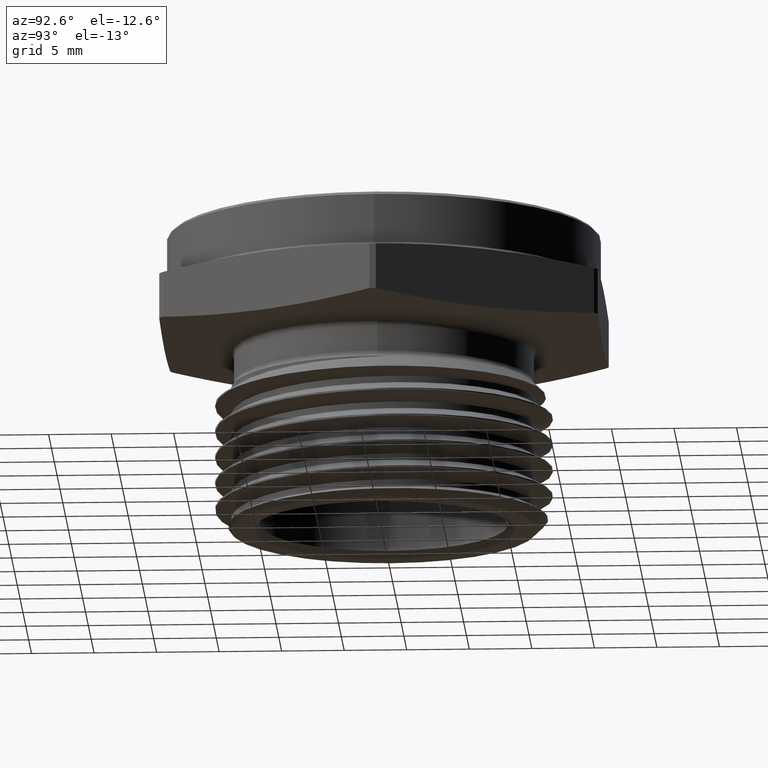
[diagram: clean part render]
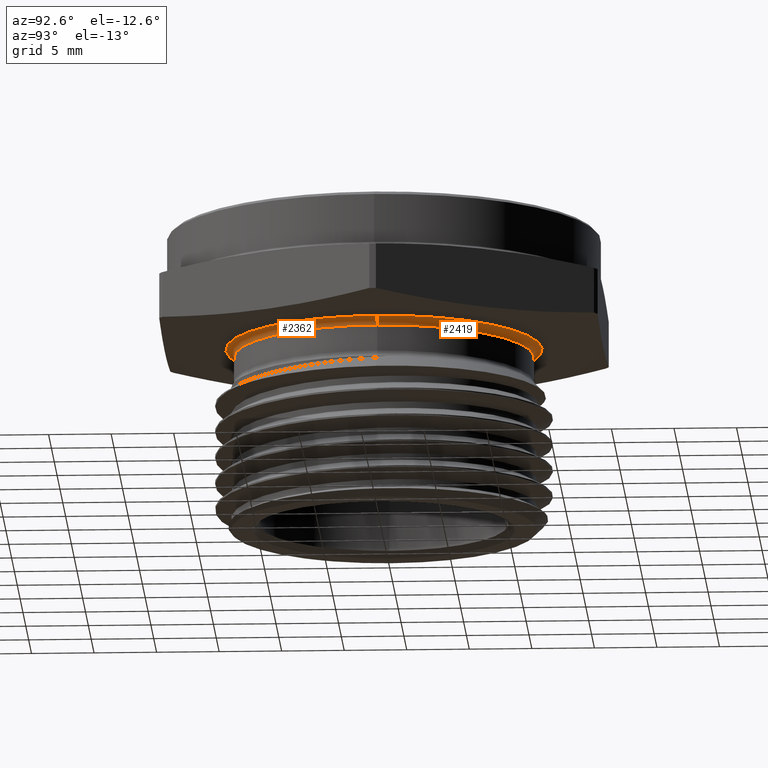
[diagram: same view with one multi-face feature highlighted, each face labeled with its STEP entity id]
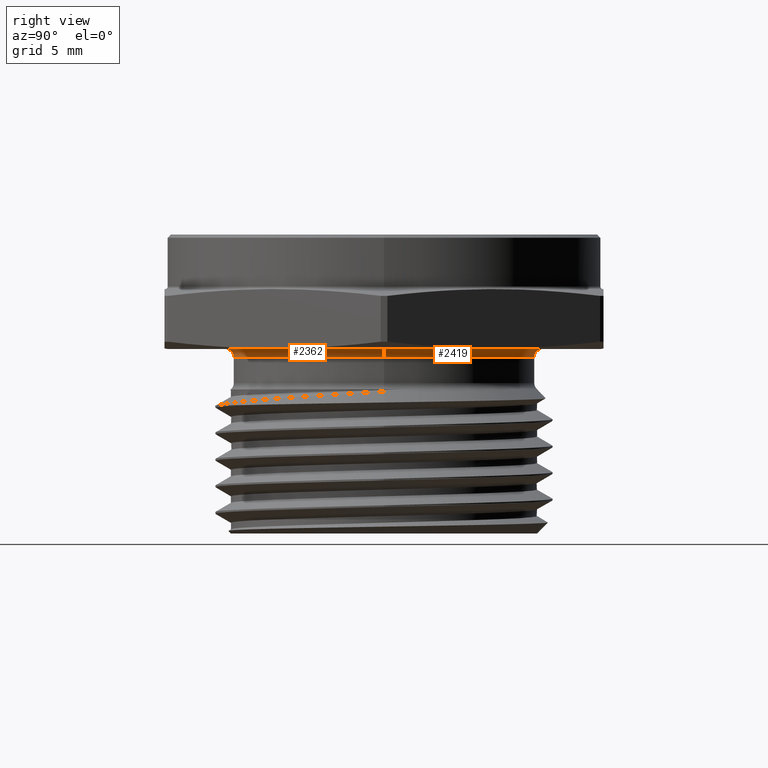
[diagram: same view with one multi-face feature highlighted, each face labeled with its STEP entity id]
A machine part, auxiliary view. The highlighted faces form ONE feature: a constant-radius fillet chain: 2 tangent blend faces with common blend radius 0.635 mm. The faces share edges in the B-rep.
A second angle (right view) of the same feature is appended — it is thin or edge-on in the first view.
Their STEP definitions:
[1] entity #2419 (Torus):
#465 = CIRCLE ( 'NONE', #2276, 0.02500000000000000500 ) ;
#467 = CIRCLE ( 'NONE', #2279, 0.02500000000000000100 ) ;
#468 = CIRCLE ( 'NONE', #2278, 0.4724999999999999200 ) ;
#515 = CIRCLE ( 'NONE', #2297, 0.4974999999999999400 ) ;
#1039 = CARTESIAN_POINT ( 'NONE',  ( 0.0000000000000000000, 0.0000000000000000000, -8.537024980200822600E-018 ) ) ;
#1040 = DIRECTION ( 'NONE',  ( -0.0000000000000000000, -0.0000000000000000000, 1.000000000000000000 ) ) ;
#1041 = DIRECTION ( 'NONE',  ( 1.000000000000000000, 0.0000000000000000000, 0.0000000000000000000 ) ) ;
#1225 = VERTEX_POINT ( 'NONE', #1357 ) ;
#1231 = VERTEX_POINT ( 'NONE', #1358 ) ;
#1232 = VERTEX_POINT ( 'NONE', #1363 ) ;
#1242 = VERTEX_POINT ( 'NONE', #1371 ) ;
#1357 = CARTESIAN_POINT ( 'NONE',  ( -0.4724999999999999200, 5.786456125971242800E-017, -0.02500000000000001500 ) ) ;
#1358 = CARTESIAN_POINT ( 'NONE',  ( 0.4724999999999999200, 0.0000000000000000000, -0.02500000000000001500 ) ) ;
#1363 = CARTESIAN_POINT ( 'NONE',  ( -0.4974999999999999400, 6.092617825758081700E-017, -6.402768735150616900E-018 ) ) ;
#1371 = CARTESIAN_POINT ( 'NONE',  ( 0.4974999999999999400, 0.0000000000000000000, -6.402768735150616900E-018 ) ) ;
#1739 = EDGE_LOOP ( 'NONE', ( #1855, #1856, #1857, #1858 ) ) ;
#1855 = ORIENTED_EDGE ( 'NONE', *, *, #2178, .F. ) ;
#1856 = ORIENTED_EDGE ( 'NONE', *, *, #2226, .F. ) ;
#1857 = ORIENTED_EDGE ( 'NONE', *, *, #2181, .T. ) ;
#1858 = ORIENTED_EDGE ( 'NONE', *, *, #2180, .T. ) ;
#2133 = CARTESIAN_POINT ( 'NONE',  ( -0.4974999999999999400, 6.092617825758081700E-017, -0.02500000000000001200 ) ) ;
#2134 = DIRECTION ( 'NONE',  ( 1.224646799147353200E-016, 1.000000000000000000, 0.0000000000000000000 ) ) ;
#2135 = DIRECTION ( 'NONE',  ( -1.000000000000000000, 1.224646799147351700E-016, 0.0000000000000000000 ) ) ;
#2140 = CARTESIAN_POINT ( 'NONE',  ( 0.0000000000000000000, 0.0000000000000000000, -0.02500000000000001500 ) ) ;
#2141 = DIRECTION ( 'NONE',  ( -0.0000000000000000000, -0.0000000000000000000, 1.000000000000000000 ) ) ;
#2142 = DIRECTION ( 'NONE',  ( 1.000000000000000000, 0.0000000000000000000, 0.0000000000000000000 ) ) ;
#2143 = CARTESIAN_POINT ( 'NONE',  ( 0.4974999999999999400, 0.0000000000000000000, -0.02500000000000001200 ) ) ;
#2144 = DIRECTION ( 'NONE',  ( 0.0000000000000000000, -1.000000000000000000, 0.0000000000000000000 ) ) ;
#2145 = DIRECTION ( 'NONE',  ( 0.0000000000000000000, 0.0000000000000000000, -1.000000000000000000 ) ) ;
#2178 = EDGE_CURVE ( 'NONE', #1232, #1225, #465, .T. ) ;
#2180 = EDGE_CURVE ( 'NONE', #1231, #1225, #468, .T. ) ;
#2181 = EDGE_CURVE ( 'NONE', #1242, #1231, #467, .T. ) ;
#2226 = EDGE_CURVE ( 'NONE', #1242, #1232, #515, .T. ) ;
#2276 = AXIS2_PLACEMENT_3D ( 'NONE', #2133, #2134, #2135 ) ;
#2278 = AXIS2_PLACEMENT_3D ( 'NONE', #2140, #2141, #2142 ) ;
#2279 = AXIS2_PLACEMENT_3D ( 'NONE', #2143, #2144, #2145 ) ;
#2297 = AXIS2_PLACEMENT_3D ( 'NONE', #1039, #1040, #1041 ) ;
#2355 = AXIS2_PLACEMENT_3D ( 'NONE', #3009, #3007, #3011 ) ;
#2419 = ADVANCED_FACE ( 'NONE', ( #3068 ), #3067, .F. ) ;
#3007 = DIRECTION ( 'NONE',  ( -0.0000000000000000000, -0.0000000000000000000, 1.000000000000000000 ) ) ;
#3009 = CARTESIAN_POINT ( 'NONE',  ( 0.0000000000000000000, 0.0000000000000000000, -0.02500000000000001200 ) ) ;
#3011 = DIRECTION ( 'NONE',  ( 1.000000000000000000, 0.0000000000000000000, 0.0000000000000000000 ) ) ;
#3067 = TOROIDAL_SURFACE ( 'NONE', #2355, 0.4974999999999999400, 0.02500000000000000500 ) ;
#3068 = FACE_OUTER_BOUND ( 'NONE', #1739, .T. ) ;
[2] entity #2362 (Torus):
#462 = CIRCLE ( 'NONE', #2275, 0.4974999999999999400 ) ;
#465 = CIRCLE ( 'NONE', #2276, 0.02500000000000000500 ) ;
#466 = CIRCLE ( 'NONE', #2277, 0.4724999999999999200 ) ;
#467 = CIRCLE ( 'NONE', #2279, 0.02500000000000000100 ) ;
#520 = FACE_OUTER_BOUND ( 'NONE', #1700, .T. ) ;
#523 = TOROIDAL_SURFACE ( 'NONE', #2304, 0.4974999999999999400, 0.02500000000000000500 ) ;
#1111 = DIRECTION ( 'NONE',  ( -0.0000000000000000000, -0.0000000000000000000, 1.000000000000000000 ) ) ;
#1112 = CARTESIAN_POINT ( 'NONE',  ( 0.0000000000000000000, 0.0000000000000000000, -0.02500000000000001200 ) ) ;
#1114 = DIRECTION ( 'NONE',  ( 1.000000000000000000, 0.0000000000000000000, 0.0000000000000000000 ) ) ;
#1221 = ORIENTED_EDGE ( 'NONE', *, *, #2177, .F. ) ;
#1222 = ORIENTED_EDGE ( 'NONE', *, *, #2178, .T. ) ;
#1223 = ORIENTED_EDGE ( 'NONE', *, *, #2179, .T. ) ;
#1225 = VERTEX_POINT ( 'NONE', #1357 ) ;
#1231 = VERTEX_POINT ( 'NONE', #1358 ) ;
#1232 = VERTEX_POINT ( 'NONE', #1363 ) ;
#1242 = VERTEX_POINT ( 'NONE', #1371 ) ;
#1357 = CARTESIAN_POINT ( 'NONE',  ( -0.4724999999999999200, 5.786456125971242800E-017, -0.02500000000000001500 ) ) ;
#1358 = CARTESIAN_POINT ( 'NONE',  ( 0.4724999999999999200, 0.0000000000000000000, -0.02500000000000001500 ) ) ;
#1363 = CARTESIAN_POINT ( 'NONE',  ( -0.4974999999999999400, 6.092617825758081700E-017, -6.402768735150616900E-018 ) ) ;
#1371 = CARTESIAN_POINT ( 'NONE',  ( 0.4974999999999999400, 0.0000000000000000000, -6.402768735150616900E-018 ) ) ;
#1700 = EDGE_LOOP ( 'NONE', ( #1221, #1222, #1223, #2702 ) ) ;
#2129 = CARTESIAN_POINT ( 'NONE',  ( 0.0000000000000000000, 0.0000000000000000000, -8.537024980200822600E-018 ) ) ;
#2130 = DIRECTION ( 'NONE',  ( -0.0000000000000000000, -0.0000000000000000000, 1.000000000000000000 ) ) ;
#2131 = DIRECTION ( 'NONE',  ( 1.000000000000000000, 0.0000000000000000000, 0.0000000000000000000 ) ) ;
#2133 = CARTESIAN_POINT ( 'NONE',  ( -0.4974999999999999400, 6.092617825758081700E-017, -0.02500000000000001200 ) ) ;
#2134 = DIRECTION ( 'NONE',  ( 1.224646799147353200E-016, 1.000000000000000000, 0.0000000000000000000 ) ) ;
#2135 = DIRECTION ( 'NONE',  ( -1.000000000000000000, 1.224646799147351700E-016, 0.0000000000000000000 ) ) ;
#2136 = CARTESIAN_POINT ( 'NONE',  ( 0.0000000000000000000, 0.0000000000000000000, -0.02500000000000001500 ) ) ;
#2137 = DIRECTION ( 'NONE',  ( -0.0000000000000000000, -0.0000000000000000000, 1.000000000000000000 ) ) ;
#2138 = DIRECTION ( 'NONE',  ( 1.000000000000000000, 0.0000000000000000000, 0.0000000000000000000 ) ) ;
#2143 = CARTESIAN_POINT ( 'NONE',  ( 0.4974999999999999400, 0.0000000000000000000, -0.02500000000000001200 ) ) ;
#2144 = DIRECTION ( 'NONE',  ( 0.0000000000000000000, -1.000000000000000000, 0.0000000000000000000 ) ) ;
#2145 = DIRECTION ( 'NONE',  ( 0.0000000000000000000, 0.0000000000000000000, -1.000000000000000000 ) ) ;
#2177 = EDGE_CURVE ( 'NONE', #1232, #1242, #462, .T. ) ;
#2178 = EDGE_CURVE ( 'NONE', #1232, #1225, #465, .T. ) ;
#2179 = EDGE_CURVE ( 'NONE', #1225, #1231, #466, .T. ) ;
#2181 = EDGE_CURVE ( 'NONE', #1242, #1231, #467, .T. ) ;
#2275 = AXIS2_PLACEMENT_3D ( 'NONE', #2129, #2130, #2131 ) ;
#2276 = AXIS2_PLACEMENT_3D ( 'NONE', #2133, #2134, #2135 ) ;
#2277 = AXIS2_PLACEMENT_3D ( 'NONE', #2136, #2137, #2138 ) ;
#2279 = AXIS2_PLACEMENT_3D ( 'NONE', #2143, #2144, #2145 ) ;
#2304 = AXIS2_PLACEMENT_3D ( 'NONE', #1112, #1111, #1114 ) ;
#2362 = ADVANCED_FACE ( 'NONE', ( #520 ), #523, .F. ) ;
#2702 = ORIENTED_EDGE ( 'NONE', *, *, #2181, .F. ) ;